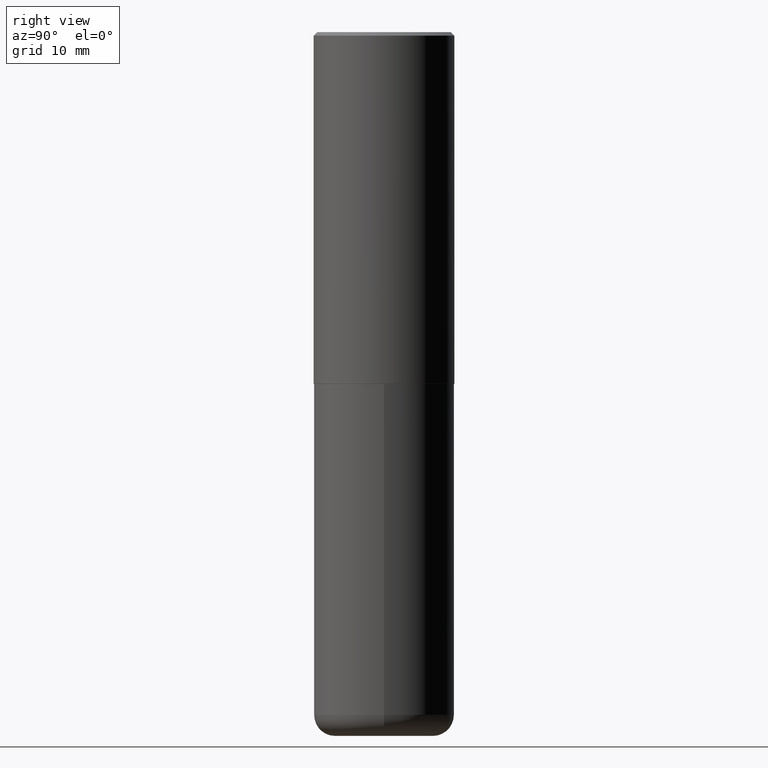
[diagram: clean part render]
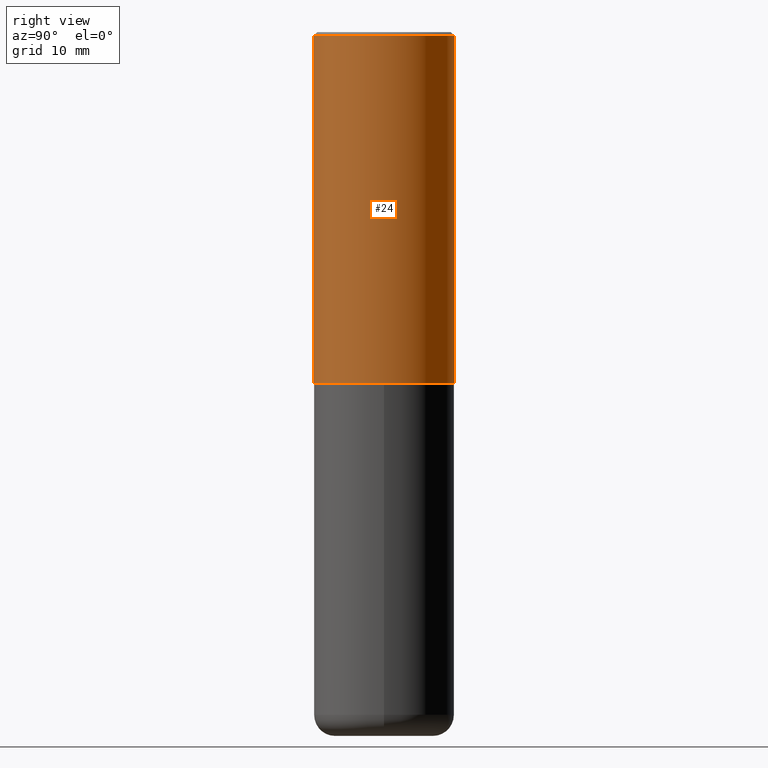
[diagram: same view with one face highlighted and labeled with its STEP entity id]
A machine part, right view. The second image highlights one B-rep face of the part: STEP entity #24.
In plain terms, the highlighted cylindrical surface (partial cylindrical patch) has radius 10 mm, axis along (-0, 0, 1).
Its self-contained STEP definition (entity closure, byte-faithful):
#10 = EDGE_CURVE ( 'NONE', #297, #280, #158, .T. ) ;
#14 = CARTESIAN_POINT ( 'NONE',  ( 2.749192406205084005E-15, 0.3937000000000000499, -0.02000000000000146105 ) ) ;
#17 = CARTESIAN_POINT ( 'NONE',  ( 2.797406750687540424E-15, 0.3936999999999934441, -1.967500000000001359 ) ) ;
#18 = CARTESIAN_POINT ( 'NONE',  ( 4.816247846760815671E-29, -6.862632887772413316E-15, -1.967500000000000027 ) ) ;
#22 = FACE_OUTER_BOUND ( 'NONE', #254, .T. ) ;
#24 = ADVANCED_FACE ( 'NONE', ( #22 ), #291, .T. ) ;
#30 = CARTESIAN_POINT ( 'NONE',  ( 4.895804672692082949E-31, -6.975992770289649092E-17, -0.02000000000000008715 ) ) ;
#35 = AXIS2_PLACEMENT_3D ( 'NONE', #30, #320, #133 ) ;
#39 = ORIENTED_EDGE ( 'NONE', *, *, #10, .T. ) ;
#59 = CARTESIAN_POINT ( 'NONE',  ( -2.749192406205036674E-15, -0.3937000000000070998, -1.967499999999998694 ) ) ;
#66 = EDGE_CURVE ( 'NONE', #122, #297, #359, .T. ) ;
#67 = AXIS2_PLACEMENT_3D ( 'NONE', #157, #238, #285 ) ;
#74 = DIRECTION ( 'NONE',  ( -2.447902336346030930E-29, 3.487996385144809360E-15, 1.000000000000000000 ) ) ;
#80 = CARTESIAN_POINT ( 'NONE',  ( -2.700978061722651647E-15, -0.3937000000000001609, -0.01999999999999870978 ) ) ;
#92 = CIRCLE ( 'NONE', #35, 0.3937000000000001054 ) ;
#94 = CARTESIAN_POINT ( 'NONE',  ( -2.749192406205084400E-15, -0.3937000000000002164, 1.373224176831512262E-15 ) ) ;
#115 = AXIS2_PLACEMENT_3D ( 'NONE', #18, #136, #368 ) ;
#122 = VERTEX_POINT ( 'NONE', #59 ) ;
#133 = DIRECTION ( 'NONE',  ( -6.982962677686265133E-15, -1.000000000000000000, 3.491137977679279029E-15 ) ) ;
#136 = DIRECTION ( 'NONE',  ( -2.447902336346030930E-29, 3.487996385144809755E-15, 1.000000000000000000 ) ) ;
#139 = VECTOR ( 'NONE', #360, 39.37007874015748143 ) ;
#157 = CARTESIAN_POINT ( 'NONE',  ( 0.000000000000000000, 0.000000000000000000, 0.000000000000000000 ) ) ;
#158 = LINE ( 'NONE', #230, #240 ) ;
#198 = ORIENTED_EDGE ( 'NONE', *, *, #352, .F. ) ;
#214 = ORIENTED_EDGE ( 'NONE', *, *, #66, .T. ) ;
#224 = ORIENTED_EDGE ( 'NONE', *, *, #396, .F. ) ;
#230 = CARTESIAN_POINT ( 'NONE',  ( 2.797406750687515575E-15, 0.3937000000000002164, -1.373224176831512262E-15 ) ) ;
#238 = DIRECTION ( 'NONE',  ( -2.447902336346030930E-29, 3.487996385144809755E-15, 1.000000000000000000 ) ) ;
#240 = VECTOR ( 'NONE', #74, 39.37007874015748143 ) ;
#254 = EDGE_LOOP ( 'NONE', ( #214, #39, #198, #224 ) ) ;
#280 = VERTEX_POINT ( 'NONE', #14 ) ;
#284 = VERTEX_POINT ( 'NONE', #80 ) ;
#285 = DIRECTION ( 'NONE',  ( -6.982962677686265922E-15, -1.000000000000000000, 3.487996385144809360E-15 ) ) ;
#291 = CYLINDRICAL_SURFACE ( 'NONE', #67, 0.3937000000000002164 ) ;
#297 = VERTEX_POINT ( 'NONE', #17 ) ;
#320 = DIRECTION ( 'NONE',  ( -2.447902336346030930E-29, 3.487996385144809755E-15, 1.000000000000000000 ) ) ;
#352 = EDGE_CURVE ( 'NONE', #284, #280, #92, .T. ) ;
#359 = CIRCLE ( 'NONE', #115, 0.3937000000000002720 ) ;
#360 = DIRECTION ( 'NONE',  ( -2.447902336346030930E-29, 3.487996385144809360E-15, 1.000000000000000000 ) ) ;
#368 = DIRECTION ( 'NONE',  ( -6.982962677686265922E-15, -1.000000000000000000, 3.469453890861393601E-15 ) ) ;
#384 = LINE ( 'NONE', #94, #139 ) ;
#396 = EDGE_CURVE ( 'NONE', #122, #284, #384, .T. ) ;